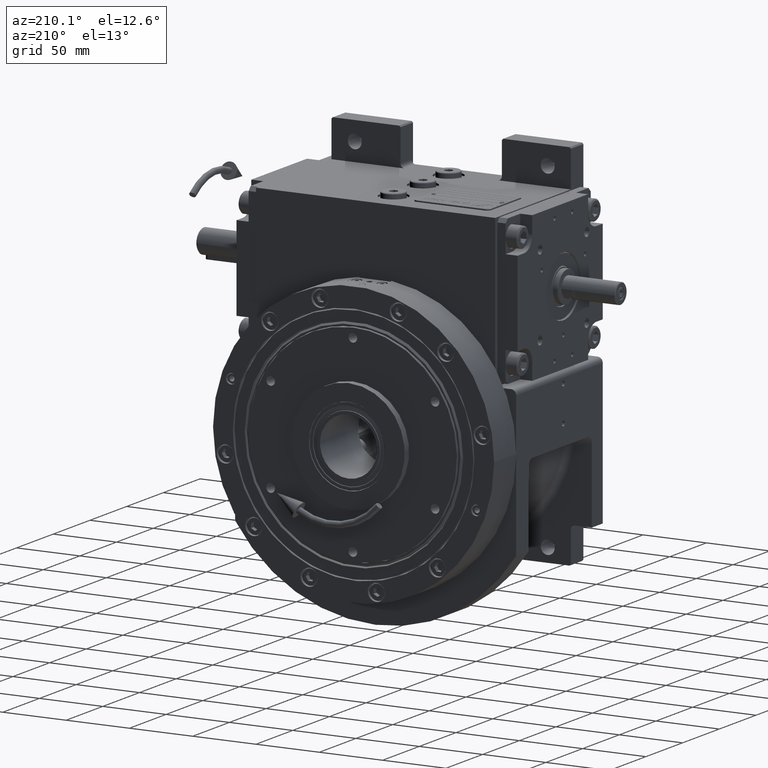
[diagram: clean part render]
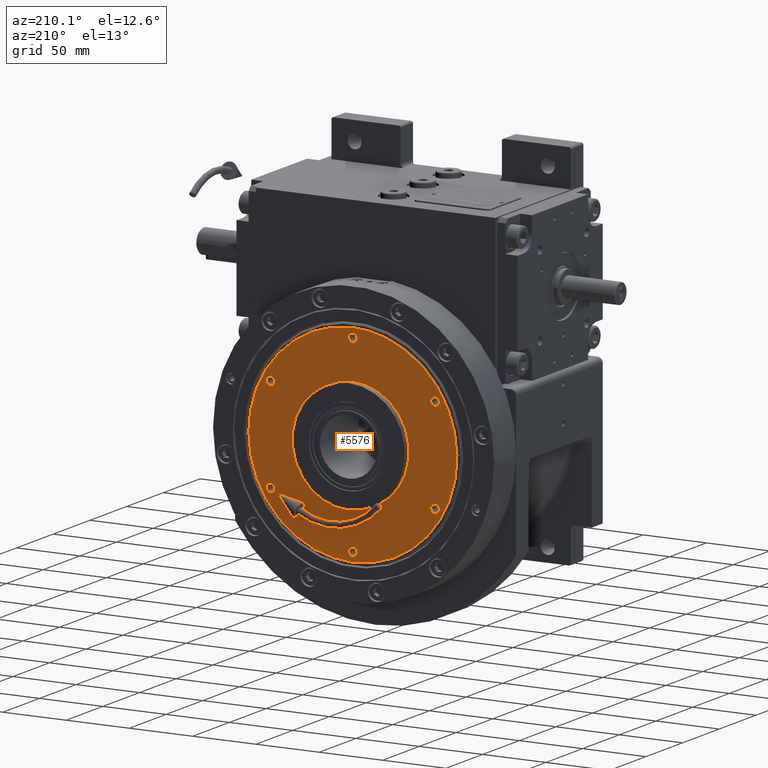
[diagram: same view with one face highlighted and labeled with its STEP entity id]
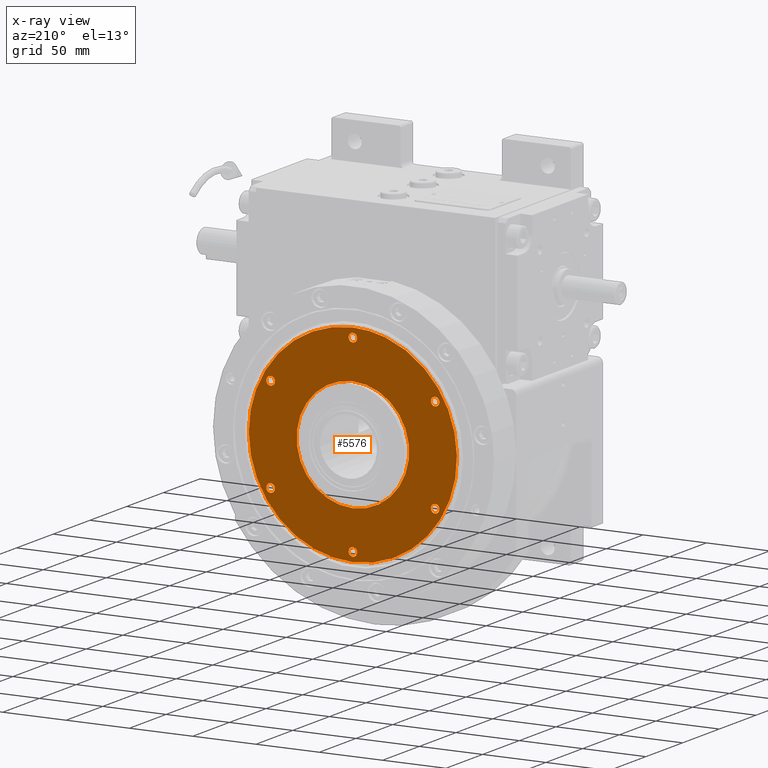
[diagram: x-ray of the same camera — body ghosted, the highlighted face saturated]
A machine part, auxiliary view. The second image highlights one B-rep face of the part: STEP entity #5576.
The next image is the same camera in x-ray: the body ghosted, the highlighted face saturated — about 0% of this face is hidden behind the body in this view.
In plain terms, the highlighted planar face has unit normal (0, -1, -0).
Its self-contained STEP definition (entity closure, byte-faithful):
#351 = AXIS2_PLACEMENT_3D ( 'NONE', #15324, #16023, #48330 ) ;
#395 = EDGE_CURVE ( 'NONE', #67868, #56817, #13208, .T. ) ;
#752 = DIRECTION ( 'NONE',  ( -1.836909530733564901E-16, -1.000000000000000000, -4.632011979606505031E-33 ) ) ;
#782 = CARTESIAN_POINT ( 'NONE',  ( 37.49999999999973710, 110.5000000000000000, 64.95190528383290030 ) ) ;
#865 = CARTESIAN_POINT ( 'NONE',  ( 78.32095192439939524, 110.4999999999999858, 25.16328900372727162 ) ) ;
#874 = CARTESIAN_POINT ( 'NONE',  ( 82.18603400874251008, 110.5000015448018047, 1.581323405575299952E-07 ) ) ;
#1109 = ORIENTED_EDGE ( 'NONE', *, *, #52086, .F. ) ;
#1265 = EDGE_LOOP ( 'NONE', ( #1109, #42012 ) ) ;
#1384 = CARTESIAN_POINT ( 'NONE',  ( -81.03742544091511490, 110.5000000000000284, -13.71909706410294660 ) ) ;
#1468 = FACE_BOUND ( 'NONE', #60481, .T. ) ;
#1510 = DIRECTION ( 'NONE',  ( -1.000000000000000000, 4.081702296416015997E-15, 0.000000000000000000 ) ) ;
#2383 = EDGE_LOOP ( 'NONE', ( #39546, #3454, #57686 ) ) ;
#2509 = CARTESIAN_POINT ( 'NONE',  ( 61.93063791654595462, 110.5000000000000000, -54.29769947772633287 ) ) ;
#2711 = DIRECTION ( 'NONE',  ( 1.000000000000000000, 0.000000000000000000, 0.000000000000000000 ) ) ;
#2758 = CARTESIAN_POINT ( 'NONE',  ( -77.86803878220746356, 110.5000000000000284, -26.42874468702228441 ) ) ;
#3024 = CIRCLE ( 'NONE', #65813, 44.45000000000000284 ) ;
#3454 = ORIENTED_EDGE ( 'NONE', *, *, #37131, .T. ) ;
#3954 = EDGE_CURVE ( 'NONE', #23517, #60340, #25496, .T. ) ;
#4106 = CARTESIAN_POINT ( 'NONE',  ( -1.048367022895735268E-10, 110.5000000000000142, -82.18603692326404087 ) ) ;
#5501 = AXIS2_PLACEMENT_3D ( 'NONE', #20584, #42011, #32522 ) ;
#5576 = ADVANCED_FACE ( 'NONE', ( #65064, #1468, #28176, #43972, #10972, #38683, #6381, #21829 ), #32403, .F. ) ;
#6003 = EDGE_CURVE ( 'NONE', #44333, #53288, #19692, .T. ) ;
#6139 = CIRCLE ( 'NONE', #44288, 3.400000000000000355 ) ;
#6381 = FACE_BOUND ( 'NONE', #63634, .T. ) ;
#6408 = B_SPLINE_CURVE_WITH_KNOTS ( 'NONE', 3,
 ( #14258, #9355, #36725, #30771, #30078, #51837, #10047, #25177, #31470, #57134, #35337, #52184, #52886, #24823, #26210, #47603, #9011, #46229, #67670, #18239, #19525, #30427, #48307, #38102, #10387, #15997, #42344, #20903, #27921, #21600, #53924, #59538, #58511, #21930, #43027, #54263, #11417, #64458, #58844, #865, #59875, #69031, #16326, #26894, #69393, #11757, #31807, #54586 ),
 .UNSPECIFIED., .F., .F.,
 ( 4, 1, 1, 1, 2, 2, 2, 2, 2, 2, 2, 2, 2, 2, 2, 2, 2, 2, 2, 2, 2, 1, 1, 1, 2, 2, 4 ),
 ( 0.000000000000000000, 0.03124999999999995837, 0.04687499999999995143, 0.05468749999999994449, 0.05859374999999993755, 0.06249999999999991673, 0.09374999999999993061, 0.1249999999999999445, 0.1874999999999999722, 0.2500000000000000000, 0.3125000000000000000, 0.3750000000000000555, 0.4375000000000000555, 0.5000000000000001110, 0.5625000000000001110, 0.6250000000000001110, 0.6875000000000002220, 0.7500000000000002220, 0.8125000000000001110, 0.8437500000000001110, 0.8750000000000000000, 0.9062500000000000000, 0.9218750000000000000, 0.9296875000000000000, 0.9335937500000000000, 0.9375000000000000000, 1.000000000000000000 ),
 .UNSPECIFIED. ) ;
#6448 = CARTESIAN_POINT ( 'NONE',  ( 2.842170943040403268E-14, 110.5000000000000000, -7.105427357600998703E-15 ) ) ;
#6814 = CARTESIAN_POINT ( 'NONE',  ( 34.09999999999973141, 110.5000000000000000, 64.95190528383290030 ) ) ;
#7335 = CARTESIAN_POINT ( 'NONE',  ( -1.048367022895735268E-10, 110.5000000000000142, -82.18603692326404087 ) ) ;
#7691 = CARTESIAN_POINT ( 'NONE',  ( -65.33708734634375048, 110.5000000000000142, -50.14696052069778887 ) ) ;
#8040 = CARTESIAN_POINT ( 'NONE',  ( -82.18412582237159825, 110.5000000000000426, -2.706922455996795041 ) ) ;
#8375 = VERTEX_POINT ( 'NONE', #874 ) ;
#8631 = ORIENTED_EDGE ( 'NONE', *, *, #13404, .F. ) ;
#8794 = CIRCLE ( 'NONE', #48038, 3.400000000000000355 ) ;
#8815 = EDGE_CURVE ( 'NONE', #15505, #37040, #14692, .T. ) ;
#9011 = CARTESIAN_POINT ( 'NONE',  ( -54.29909472632881773, 110.5000000000000000, 61.92944677904171868 ) ) ;
#9355 = CARTESIAN_POINT ( 'NONE',  ( -82.18410185386885303, 110.4999999999999858, 2.706720040397336824 ) ) ;
#9891 = EDGE_CURVE ( 'NONE', #31220, #59147, #13970, .T. ) ;
#10047 = CARTESIAN_POINT ( 'NONE',  ( -80.73618378714648713, 110.5000000000000142, 15.37033942092474881 ) ) ;
#10279 = DIRECTION ( 'NONE',  ( 1.000000000000000000, 0.000000000000000000, 1.436759208338440266E-15 ) ) ;
#10313 = EDGE_CURVE ( 'NONE', #51118, #48068, #6139, .T. ) ;
#10387 = CARTESIAN_POINT ( 'NONE',  ( 5.396190313849494657, 110.5000000000000000, 82.18606838660620895 ) ) ;
#10888 = EDGE_LOOP ( 'NONE', ( #47953, #67064 ) ) ;
#10972 = FACE_BOUND ( 'NONE', #53400, .T. ) ;
#11366 = ORIENTED_EDGE ( 'NONE', *, *, #59996, .F. ) ;
#11417 = CARTESIAN_POINT ( 'NONE',  ( 73.74790136345738745, 110.5000000000000000, 36.37523474268279244 ) ) ;
#11662 = CARTESIAN_POINT ( 'NONE',  ( 82.18603400874251008, 110.5000015448018047, 1.581323405575299952E-07 ) ) ;
#11690 = DIRECTION ( 'NONE',  ( 4.179663151529975200E-15, 1.000000000000000000, 2.089831575764979711E-15 ) ) ;
#11757 = CARTESIAN_POINT ( 'NONE',  ( 81.65593245021590008, 110.4999999999999716, 10.75709170780790025 ) ) ;
#12146 = EDGE_CURVE ( 'NONE', #61810, #24700, #3024, .T. ) ;
#12282 = CARTESIAN_POINT ( 'NONE',  ( -5.396965920549728679, 110.4999999999999858, -82.18606886526323763 ) ) ;
#12504 = CARTESIAN_POINT ( 'NONE',  ( -82.18603400874100373, 110.5000015448012078, -1.581323299043350224E-07 ) ) ;
#12715 = CARTESIAN_POINT ( 'NONE',  ( 65.33763228115991240, 110.4999999999999858, -50.14630245138530995 ) ) ;
#12948 = CARTESIAN_POINT ( 'NONE',  ( -81.41054315470101699, 110.5000000000000142, -11.40073033654709000 ) ) ;
#13043 = CARTESIAN_POINT ( 'NONE',  ( 5.396965314102869726, 110.4999999999999858, -82.18599046470633596 ) ) ;
#13208 = CIRCLE ( 'NONE', #41309, 3.400000000000000355 ) ;
#13404 = EDGE_CURVE ( 'NONE', #60340, #23517, #64722, .T. ) ;
#13603 = DIRECTION ( 'NONE',  ( 0.000000000000000000, 1.000000000000000000, -2.089831575765000222E-15 ) ) ;
#13655 = CARTESIAN_POINT ( 'NONE',  ( -10.74076764840350862, 110.4999999999999858, -81.65964476131456706 ) ) ;
#13657 = CARTESIAN_POINT ( 'NONE',  ( 40.89999999999973568, 110.5000000000000000, 64.95190528383344031 ) ) ;
#13970 = CIRCLE ( 'NONE', #15079, 3.400000000000000355 ) ;
#14258 = CARTESIAN_POINT ( 'NONE',  ( -82.18603400874100373, 110.5000015448012078, -1.581323299043350224E-07 ) ) ;
#14342 = CARTESIAN_POINT ( 'NONE',  ( 78.39999999999999147, 110.5000000000000000, -7.572756541330611374E-27 ) ) ;
#14504 = DIRECTION ( 'NONE',  ( 1.000000000000000000, -4.081702296416015997E-15, 0.000000000000000000 ) ) ;
#14692 = CIRCLE ( 'NONE', #15802, 3.400000000000000355 ) ;
#14845 = AXIS2_PLACEMENT_3D ( 'NONE', #60515, #65095, #37673 ) ;
#15079 = AXIS2_PLACEMENT_3D ( 'NONE', #63038, #13603, #2711 ) ;
#15324 = CARTESIAN_POINT ( 'NONE',  ( 37.49999999999973710, 110.5000000000000000, 64.95190528383290030 ) ) ;
#15505 = VERTEX_POINT ( 'NONE', #13657 ) ;
#15544 = DIRECTION ( 'NONE',  ( 4.179663151529975200E-15, 1.000000000000000000, 2.089831575764989967E-15 ) ) ;
#15750 = CARTESIAN_POINT ( 'NONE',  ( 44.44999999999973994, 110.5000000000000000, 5.443555022212860307E-15 ) ) ;
#15802 = AXIS2_PLACEMENT_3D ( 'NONE', #782, #33822, #49607 ) ;
#15997 = CARTESIAN_POINT ( 'NONE',  ( 10.74154536275718641, 110.5000000000000000, 81.65949047945815664 ) ) ;
#16023 = DIRECTION ( 'NONE',  ( 0.000000000000000000, 1.000000000000000000, -2.089831575764989967E-15 ) ) ;
#16211 = DIRECTION ( 'NONE',  ( 0.000000000000000000, 1.000000000000000000, 1.540743955586159449E-33 ) ) ;
#16301 = CARTESIAN_POINT ( 'NONE',  ( -40.90000000000026148, 110.5000000000000000, 64.95190528383290030 ) ) ;
#16326 = CARTESIAN_POINT ( 'NONE',  ( 80.33384769217845189, 110.4999999999999858, 17.35112966435321979 ) ) ;
#16928 = CARTESIAN_POINT ( 'NONE',  ( 2.030702568688729503E-14, 110.5000000000000000, 0.000000000000000000 ) ) ;
#17280 = CARTESIAN_POINT ( 'NONE',  ( 10.74078281828397508, 110.4999999999999716, -81.65971843768956262 ) ) ;
#18015 = CARTESIAN_POINT ( 'NONE',  ( -37.50000000000000000, 110.5000000000000000, -64.95190528383237449 ) ) ;
#18230 = CARTESIAN_POINT ( 'NONE',  ( -71.33364469616624604, 110.5000000000000142, -41.17277949763079903 ) ) ;
#18239 = CARTESIAN_POINT ( 'NONE',  ( -36.43677092628834657, 110.5000000000000000, 73.86494086435298811 ) ) ;
#18564 = CARTESIAN_POINT ( 'NONE',  ( -81.98533930688320481, 110.5000000000000000, -6.740832071539393233 ) ) ;
#19466 = EDGE_LOOP ( 'NONE', ( #54840, #29063 ) ) ;
#19525 = CARTESIAN_POINT ( 'NONE',  ( -26.46591210633614466, 110.5000000000000426, 77.99484015378844504 ) ) ;
#19692 = B_SPLINE_CURVE_WITH_KNOTS ( 'NONE', 3,
 ( #7335, #12282, #13655, #61425, #23509, #39656, #29458, #34733, #44221, #34377, #7691, #18230, #55454, #45267, #2758, #44569, #56161, #24180, #61083, #66689, #1384, #12948, #18564, #8040, #61782 ),
 .UNSPECIFIED., .F., .F.,
 ( 4, 2, 2, 2, 2, 2, 2, 2, 2, 2, 1, 1, 1, 4 ),
 ( 0.4999999719176850821, 0.5624999754279744746, 0.6249999789382639781, 0.6874999824485534816, 0.7499999859588428741, 0.8124999894691323776, 0.8749999929794217701, 0.9062499947345665774, 0.9374999964897112736, 0.9414062467091042219, 0.9453124969284972812, 0.9531249973672833997, 0.9687499982448555258, 1.000000000000000000 ),
 .UNSPECIFIED. ) ;
#20584 = CARTESIAN_POINT ( 'NONE',  ( -75.00000000000000000, 110.5000000000000000, 7.993605777293462518E-15 ) ) ;
#20903 = CARTESIAN_POINT ( 'NONE',  ( 26.46597584794664115, 110.5000000000000000, 77.99473097346013617 ) ) ;
#21600 = CARTESIAN_POINT ( 'NONE',  ( 41.17346744512528289, 110.4999999999999858, 71.33314274904846286 ) ) ;
#21782 = ORIENTED_EDGE ( 'NONE', *, *, #32164, .F. ) ;
#21829 = FACE_BOUND ( 'NONE', #19466, .T. ) ;
#21930 = CARTESIAN_POINT ( 'NONE',  ( 65.33793898011035139, 110.4999999999999716, 50.14568632257584824 ) ) ;
#22236 = DIRECTION ( 'NONE',  ( -3.197042680585385368E-16, -1.000000000000000000, -2.395852276087259110E-17 ) ) ;
#23194 = DIRECTION ( 'NONE',  ( 6.394085361170760874E-16, 1.000000000000000000, -2.395852276087253871E-17 ) ) ;
#23241 = CARTESIAN_POINT ( 'NONE',  ( 41.17286106389226319, 110.4999999999999858, -71.33364164011456410 ) ) ;
#23509 = CARTESIAN_POINT ( 'NONE',  ( -26.46516568415016835, 110.5000000000000284, -77.99506614383170700 ) ) ;
#23517 = VERTEX_POINT ( 'NONE', #64614 ) ;
#23929 = CARTESIAN_POINT ( 'NONE',  ( 71.21656534630055546, 110.4999999999999858, -41.11101387479465075 ) ) ;
#24180 = CARTESIAN_POINT ( 'NONE',  ( -80.67302273752034125, 110.5000000000000284, -15.69862675829507204 ) ) ;
#24700 = VERTEX_POINT ( 'NONE', #34061 ) ;
#24823 = CARTESIAN_POINT ( 'NONE',  ( -71.33312151958747904, 110.5000000000000142, 41.17344376063476830 ) ) ;
#24986 = CARTESIAN_POINT ( 'NONE',  ( -75.00000000000000000, 110.5000000000000000, 1.043609643146883373E-14 ) ) ;
#25084 = CARTESIAN_POINT ( 'NONE',  ( 34.10000000000000142, 110.5000000000000000, -64.95190528383290030 ) ) ;
#25177 = CARTESIAN_POINT ( 'NONE',  ( -80.67297687466572143, 110.5000000000000284, 15.69867770626846770 ) ) ;
#25496 = CIRCLE ( 'NONE', #64730, 3.400000000000000355 ) ;
#26210 = CARTESIAN_POINT ( 'NONE',  ( -65.33761603904908100, 110.5000000000000426, 50.14632643991264871 ) ) ;
#26894 = CARTESIAN_POINT ( 'NONE',  ( 80.47346500646517597, 110.4999999999999716, 16.69135747300155614 ) ) ;
#27921 = CARTESIAN_POINT ( 'NONE',  ( 36.43673274471090195, 110.5000000000000142, 73.86503631034787531 ) ) ;
#28045 = CIRCLE ( 'NONE', #61686, 44.45000000000000284 ) ;
#28176 = FACE_BOUND ( 'NONE', #10888, .T. ) ;
#28186 = CARTESIAN_POINT ( 'NONE',  ( 80.54158547785669953, 110.4999999999999858, -16.35931090249731312 ) ) ;
#29063 = ORIENTED_EDGE ( 'NONE', *, *, #48369, .T. ) ;
#29458 = CARTESIAN_POINT ( 'NONE',  ( -41.17304319471159602, 110.5000000000000426, -71.33342587732616380 ) ) ;
#30078 = CARTESIAN_POINT ( 'NONE',  ( -81.03738559922308582, 110.5000000000000284, 13.71894467123656725 ) ) ;
#30427 = CARTESIAN_POINT ( 'NONE',  ( -21.32594694526337165, 110.5000000000000000, 79.55394827524149548 ) ) ;
#30771 = CARTESIAN_POINT ( 'NONE',  ( -81.41049721478043466, 110.4999999999999858, 11.40046640563004487 ) ) ;
#31220 = VERTEX_POINT ( 'NONE', #54592 ) ;
#31470 = CARTESIAN_POINT ( 'NONE',  ( -80.08037051196102141, 110.5000000000000142, 18.67829002333699506 ) ) ;
#31684 = B_SPLINE_CURVE_WITH_KNOTS ( 'NONE', 3,
 ( #11662, #59782, #66782, #28186, #49244, #34133, #39404, #60832, #43979, #49925, #33802, #55546, #23929, #50620, #12715, #2509, #44313, #54491, #23241, #66446, #45350, #38350, #17280, #13043, #60114 ),
 .UNSPECIFIED., .F., .F.,
 ( 4, 2, 2, 1, 1, 1, 2, 2, 2, 2, 2, 2, 2, 4 ),
 ( 0.000000000000000000, 0.06249999648971088506, 0.06640624627031782579, 0.07031249605092476651, 0.07812499561213863408, 0.09374999473456628596, 0.1249999929794215758, 0.1562499912242768518, 0.1874999894691321833, 0.2499999859588427631, 0.3124999824485532596, 0.3749999789382638671, 0.4374999754279744746, 0.4999999719176850821 ),
 .UNSPECIFIED. ) ;
#31807 = CARTESIAN_POINT ( 'NONE',  ( 82.18222187922351907, 110.4999999999999858, 5.413844607824314537 ) ) ;
#32164 = EDGE_CURVE ( 'NONE', #42274, #41018, #66077, .T. ) ;
#32403 = PLANE ( 'NONE',  #66918 ) ;
#32457 = DIRECTION ( 'NONE',  ( 1.000000000000000000, -3.122111992759157471E-16, 2.823168139440055505E-16 ) ) ;
#32522 = DIRECTION ( 'NONE',  ( 1.000000000000000000, 0.000000000000000000, -2.351060522735629490E-15 ) ) ;
#33802 = CARTESIAN_POINT ( 'NONE',  ( 74.89780891093313642, 110.5000000000000284, -33.94318345663835856 ) ) ;
#33822 = DIRECTION ( 'NONE',  ( 9.367723249499515189E-31, 1.000000000000000000, 2.089831575764994700E-15 ) ) ;
#34061 = CARTESIAN_POINT ( 'NONE',  ( -44.45000000000026574, 110.5000000000000000, -7.258073362939949116E-15 ) ) ;
#34133 = CARTESIAN_POINT ( 'NONE',  ( 80.33387830201940005, 110.4999999999999716, -17.35095847086826737 ) ) ;
#34377 = CARTESIAN_POINT ( 'NONE',  ( -61.93037135062296272, 110.5000000000000142, -54.29808050887305626 ) ) ;
#34433 = AXIS2_PLACEMENT_3D ( 'NONE', #48530, #58051, #10279 ) ;
#34733 = CARTESIAN_POINT ( 'NONE',  ( -50.14754556814370545, 110.5000000000000000, -65.33666926840521683 ) ) ;
#35038 = AXIS2_PLACEMENT_3D ( 'NONE', #35983, #57417, #41601 ) ;
#35337 = CARTESIAN_POINT ( 'NONE',  ( -77.86821339563776689, 110.5000000000000426, 26.42818210147167335 ) ) ;
#35474 = ORIENTED_EDGE ( 'NONE', *, *, #395, .F. ) ;
#35983 = CARTESIAN_POINT ( 'NONE',  ( -37.50000000000000000, 110.5000000000000000, -64.95190528383237449 ) ) ;
#36403 = CARTESIAN_POINT ( 'NONE',  ( -78.39999999999999147, 110.5000000000000000, 2.697109197274935919E-15 ) ) ;
#36725 = CARTESIAN_POINT ( 'NONE',  ( -81.98529366466023305, 110.4999999999999716, 6.740478288382624861 ) ) ;
#37040 = VERTEX_POINT ( 'NONE', #6814 ) ;
#37131 = EDGE_CURVE ( 'NONE', #8375, #44333, #31684, .T. ) ;
#37589 = ORIENTED_EDGE ( 'NONE', *, *, #58198, .F. ) ;
#37673 = DIRECTION ( 'NONE',  ( -1.000000000000000000, 4.081702296416015997E-15, 0.000000000000000000 ) ) ;
#38102 = CARTESIAN_POINT ( 'NONE',  ( -5.396175763947936410, 110.5000000000000000, 82.18599094346397749 ) ) ;
#38350 = CARTESIAN_POINT ( 'NONE',  ( 21.32671897775462355, 110.5000000000000142, -79.55379426815670740 ) ) ;
#38484 = CARTESIAN_POINT ( 'NONE',  ( -34.10000000000000142, 110.5000000000000000, -64.95190528383237449 ) ) ;
#38683 = FACE_BOUND ( 'NONE', #1265, .T. ) ;
#38698 = ORIENTED_EDGE ( 'NONE', *, *, #3954, .F. ) ;
#39054 = DIRECTION ( 'NONE',  ( 0.000000000000000000, 1.000000000000000000, -2.089831575764995489E-15 ) ) ;
#39404 = CARTESIAN_POINT ( 'NONE',  ( 80.11857142980544211, 110.5000000000000142, -18.33865731567764001 ) ) ;
#39546 = ORIENTED_EDGE ( 'NONE', *, *, #68829, .T. ) ;
#39656 = CARTESIAN_POINT ( 'NONE',  ( -36.43753282681043260, 110.4999999999999858, -73.86470531561997177 ) ) ;
#39706 = DIRECTION ( 'NONE',  ( 1.000000000000000000, -6.244223985518314942E-16, 2.023907469293703493E-16 ) ) ;
#40185 = EDGE_CURVE ( 'NONE', #48068, #51118, #64186, .T. ) ;
#40342 = EDGE_CURVE ( 'NONE', #59147, #31220, #41762, .T. ) ;
#41018 = VERTEX_POINT ( 'NONE', #36403 ) ;
#41309 = AXIS2_PLACEMENT_3D ( 'NONE', #60834, #39054, #52012 ) ;
#41601 = DIRECTION ( 'NONE',  ( 1.000000000000000000, 0.000000000000000000, 0.000000000000000000 ) ) ;
#41762 = CIRCLE ( 'NONE', #14845, 3.400000000000000355 ) ;
#42011 = DIRECTION ( 'NONE',  ( 0.000000000000000000, 1.000000000000000000, 1.540743955586159449E-33 ) ) ;
#42012 = ORIENTED_EDGE ( 'NONE', *, *, #8815, .F. ) ;
#42274 = VERTEX_POINT ( 'NONE', #66044 ) ;
#42344 = CARTESIAN_POINT ( 'NONE',  ( 21.32597268393185175, 110.4999999999999858, 79.55402177641883554 ) ) ;
#43027 = CARTESIAN_POINT ( 'NONE',  ( 69.83408181518969116, 110.4999999999999858, 43.41695845024568001 ) ) ;
#43260 = DIRECTION ( 'NONE',  ( -1.000000000000000000, 1.836909530733564901E-16, 0.000000000000000000 ) ) ;
#43423 = AXIS2_PLACEMENT_3D ( 'NONE', #67894, #15544, #14504 ) ;
#43972 = FACE_BOUND ( 'NONE', #59664, .T. ) ;
#43979 = CARTESIAN_POINT ( 'NONE',  ( 78.32115647600109298, 110.4999999999999716, -25.16263082416817198 ) ) ;
#44221 = CARTESIAN_POINT ( 'NONE',  ( -54.29850716401767841, 110.5000000000000000, -61.92993699073153380 ) ) ;
#44288 = AXIS2_PLACEMENT_3D ( 'NONE', #18015, #11690, #1510 ) ;
#44313 = CARTESIAN_POINT ( 'NONE',  ( 54.29822300750021924, 110.4999999999999432, -61.93031885547897986 ) ) ;
#44333 = VERTEX_POINT ( 'NONE', #4106 ) ;
#44569 = CARTESIAN_POINT ( 'NONE',  ( -79.42706700825716837, 110.5000000000000000, -21.28825086087052298 ) ) ;
#45267 = CARTESIAN_POINT ( 'NONE',  ( -76.96293238175633178, 110.5000000000000284, -28.95791760141081284 ) ) ;
#45350 = CARTESIAN_POINT ( 'NONE',  ( 26.46527515611211356, 110.5000000000000284, -77.99510436064866781 ) ) ;
#46076 = CARTESIAN_POINT ( 'NONE',  ( -40.89999999999999858, 110.5000000000000000, -64.95190528383290030 ) ) ;
#46229 = CARTESIAN_POINT ( 'NONE',  ( -50.14684274527402152, 110.5000000000000142, 65.33704237330343290 ) ) ;
#46523 = CARTESIAN_POINT ( 'NONE',  ( 40.89999999999999858, 110.5000000000000000, -64.95190528383237449 ) ) ;
#47603 = CARTESIAN_POINT ( 'NONE',  ( -61.92976105365575279, 110.5000000000000142, 54.29857669836266609 ) ) ;
#47953 = ORIENTED_EDGE ( 'NONE', *, *, #10313, .F. ) ;
#48038 = AXIS2_PLACEMENT_3D ( 'NONE', #24986, #57967, #68864 ) ;
#48068 = VERTEX_POINT ( 'NONE', #38484 ) ;
#48307 = CARTESIAN_POINT ( 'NONE',  ( -10.74154236511540184, 110.5000000000000000, 81.65956691445188653 ) ) ;
#48330 = DIRECTION ( 'NONE',  ( -1.000000000000000000, 0.000000000000000000, 0.000000000000000000 ) ) ;
#48369 = EDGE_CURVE ( 'NONE', #61810, #24700, #28045, .T. ) ;
#48530 = CARTESIAN_POINT ( 'NONE',  ( 75.00000000000000000, 110.5000000000000000, -4.884981308350821306E-15 ) ) ;
#49244 = CARTESIAN_POINT ( 'NONE',  ( 80.47346700800821395, 110.4999999999999858, -16.69126919466643955 ) ) ;
#49607 = DIRECTION ( 'NONE',  ( 1.000000000000000000, 0.000000000000000000, 0.000000000000000000 ) ) ;
#49925 = CARTESIAN_POINT ( 'NONE',  ( 76.96232867576274828, 110.5000000000000142, -28.95928036596271227 ) ) ;
#50620 = CARTESIAN_POINT ( 'NONE',  ( 69.83423930135026581, 110.4999999999999858, -43.41667302301342346 ) ) ;
#50723 = ORIENTED_EDGE ( 'NONE', *, *, #9891, .F. ) ;
#51118 = VERTEX_POINT ( 'NONE', #46076 ) ;
#51837 = CARTESIAN_POINT ( 'NONE',  ( -80.85911346599473859, 110.4999999999999858, 14.71011054370710980 ) ) ;
#52012 = DIRECTION ( 'NONE',  ( -1.000000000000000000, 0.000000000000000000, 0.000000000000000000 ) ) ;
#52086 = EDGE_CURVE ( 'NONE', #37040, #15505, #67675, .T. ) ;
#52184 = CARTESIAN_POINT ( 'NONE',  ( -76.96276536764067089, 110.5000000000000142, 28.95822631422415583 ) ) ;
#52886 = CARTESIAN_POINT ( 'NONE',  ( -73.86467355760834153, 110.5000000000000142, 36.43724814399683254 ) ) ;
#53288 = VERTEX_POINT ( 'NONE', #12504 ) ;
#53400 = EDGE_LOOP ( 'NONE', ( #62137, #50723 ) ) ;
#53924 = CARTESIAN_POINT ( 'NONE',  ( 50.14712887847355915, 110.4999999999999716, 65.33694734459872677 ) ) ;
#54263 = CARTESIAN_POINT ( 'NONE',  ( 71.21633143618713291, 110.5000000000000000, 41.11144999242241482 ) ) ;
#54463 = DIRECTION ( 'NONE',  ( -1.000000000000000000, 0.000000000000000000, -1.502066445081090976E-15 ) ) ;
#54491 = CARTESIAN_POINT ( 'NONE',  ( 50.14771722367689222, 110.4999999999999716, -65.33645767331709919 ) ) ;
#54586 = CARTESIAN_POINT ( 'NONE',  ( 82.18603400874251008, 110.5000015448018047, 1.581323405575299952E-07 ) ) ;
#54592 = CARTESIAN_POINT ( 'NONE',  ( -34.10000000000026432, 110.5000000000000000, 64.95190528383344031 ) ) ;
#54840 = ORIENTED_EDGE ( 'NONE', *, *, #12146, .F. ) ;
#55454 = CARTESIAN_POINT ( 'NONE',  ( -73.86436510405066258, 110.5000000000000000, -36.43783581387070569 ) ) ;
#55546 = CARTESIAN_POINT ( 'NONE',  ( 73.74813151264139321, 110.5000000000000000, -36.37479690083411299 ) ) ;
#56161 = CARTESIAN_POINT ( 'NONE',  ( -80.08026981023135704, 110.5000000000000142, -18.67866566709026444 ) ) ;
#56817 = VERTEX_POINT ( 'NONE', #46523 ) ;
#57134 = CARTESIAN_POINT ( 'NONE',  ( -79.42723460417914794, 110.5000000000000142, 21.28768615169941825 ) ) ;
#57417 = DIRECTION ( 'NONE',  ( 0.000000000000000000, 1.000000000000000000, -2.089831575764980500E-15 ) ) ;
#57686 = ORIENTED_EDGE ( 'NONE', *, *, #6003, .T. ) ;
#57967 = DIRECTION ( 'NONE',  ( 0.000000000000000000, 1.000000000000000000, 1.540743955586159449E-33 ) ) ;
#58051 = DIRECTION ( 'NONE',  ( 0.000000000000000000, 1.000000000000000000, 1.540743955586159449E-33 ) ) ;
#58198 = EDGE_CURVE ( 'NONE', #56817, #67868, #59110, .T. ) ;
#58511 = CARTESIAN_POINT ( 'NONE',  ( 61.93011393209871329, 110.4999999999999858, 54.29833759267260263 ) ) ;
#58844 = CARTESIAN_POINT ( 'NONE',  ( 76.96221393906922970, 110.4999999999999716, 28.95965176232081362 ) ) ;
#59110 = CIRCLE ( 'NONE', #43423, 3.400000000000000355 ) ;
#59147 = VERTEX_POINT ( 'NONE', #16301 ) ;
#59538 = CARTESIAN_POINT ( 'NONE',  ( 54.29876972623154785, 110.4999999999999858, 61.92967476324737675 ) ) ;
#59664 = EDGE_LOOP ( 'NONE', ( #11366, #21782 ) ) ;
#59751 = CARTESIAN_POINT ( 'NONE',  ( 75.00000000000000000, 110.5000000000000000, 5.107025913275571780E-15 ) ) ;
#59782 = CARTESIAN_POINT ( 'NONE',  ( 82.18217394222040184, 110.4999999999999716, -5.413439777049708468 ) ) ;
#59875 = CARTESIAN_POINT ( 'NONE',  ( 79.57457908632085264, 110.4999999999999858, 20.63093614355465988 ) ) ;
#59996 = EDGE_CURVE ( 'NONE', #41018, #42274, #8794, .T. ) ;
#60114 = CARTESIAN_POINT ( 'NONE',  ( -1.048367022895735268E-10, 110.5000000000000142, -82.18603692326404087 ) ) ;
#60340 = VERTEX_POINT ( 'NONE', #14342 ) ;
#60481 = EDGE_LOOP ( 'NONE', ( #35474, #37589 ) ) ;
#60515 = CARTESIAN_POINT ( 'NONE',  ( -37.50000000000026290, 110.5000000000000000, 64.95190528383344031 ) ) ;
#60832 = CARTESIAN_POINT ( 'NONE',  ( 79.57472203535758126, 110.4999999999999858, -20.63044246711258722 ) ) ;
#60834 = CARTESIAN_POINT ( 'NONE',  ( 37.50000000000000000, 110.5000000000000000, -64.95190528383290030 ) ) ;
#61083 = CARTESIAN_POINT ( 'NONE',  ( -80.73621674438206242, 110.5000000000000000, -15.37038518178290758 ) ) ;
#61130 = CARTESIAN_POINT ( 'NONE',  ( 1.776356839400252042E-14, 110.5000000000000000, -3.552713678800499352E-15 ) ) ;
#61425 = CARTESIAN_POINT ( 'NONE',  ( -21.32673791258707396, 110.5000000000000000, -79.55386997823406148 ) ) ;
#61686 = AXIS2_PLACEMENT_3D ( 'NONE', #6448, #22236, #32457 ) ;
#61782 = CARTESIAN_POINT ( 'NONE',  ( -82.18603400874100373, 110.5000015448012078, -1.581323299043350224E-07 ) ) ;
#61810 = VERTEX_POINT ( 'NONE', #15750 ) ;
#62137 = ORIENTED_EDGE ( 'NONE', *, *, #40342, .F. ) ;
#63038 = CARTESIAN_POINT ( 'NONE',  ( -37.50000000000026290, 110.5000000000000000, 64.95190528383344031 ) ) ;
#63634 = EDGE_LOOP ( 'NONE', ( #38698, #8631 ) ) ;
#64186 = CIRCLE ( 'NONE', #35038, 3.400000000000000355 ) ;
#64458 = CARTESIAN_POINT ( 'NONE',  ( 74.89794069821219580, 110.5000000000000142, 33.94279222128608353 ) ) ;
#64614 = CARTESIAN_POINT ( 'NONE',  ( 71.59999999999999432, 110.5000000000000000, -3.645078006008976194E-16 ) ) ;
#64722 = CIRCLE ( 'NONE', #34433, 3.400000000000000355 ) ;
#64730 = AXIS2_PLACEMENT_3D ( 'NONE', #59751, #16211, #54463 ) ;
#65064 = FACE_OUTER_BOUND ( 'NONE', #2383, .T. ) ;
#65095 = DIRECTION ( 'NONE',  ( 4.179663151529964945E-15, 1.000000000000000000, 2.089831575764994700E-15 ) ) ;
#65813 = AXIS2_PLACEMENT_3D ( 'NONE', #61130, #23194, #39706 ) ;
#66044 = CARTESIAN_POINT ( 'NONE',  ( -71.59999999999999432, 110.5000000000000000, 3.061616997868260769E-15 ) ) ;
#66077 = CIRCLE ( 'NONE', #5501, 3.400000000000000355 ) ;
#66446 = CARTESIAN_POINT ( 'NONE',  ( 36.43741795798403871, 110.5000000000000142, -73.86467248177763167 ) ) ;
#66689 = CARTESIAN_POINT ( 'NONE',  ( -80.85914935550086113, 110.5000000000000142, -14.71020086056657838 ) ) ;
#66782 = CARTESIAN_POINT ( 'NONE',  ( 81.65587465362948194, 110.4999999999999432, -10.75668806138983946 ) ) ;
#66918 = AXIS2_PLACEMENT_3D ( 'NONE', #16928, #752, #43260 ) ;
#67064 = ORIENTED_EDGE ( 'NONE', *, *, #40185, .F. ) ;
#67670 = CARTESIAN_POINT ( 'NONE',  ( -41.17372798125234112, 110.5000000000000142, 71.33306199257258129 ) ) ;
#67675 = CIRCLE ( 'NONE', #351, 3.400000000000000355 ) ;
#67868 = VERTEX_POINT ( 'NONE', #25084 ) ;
#67894 = CARTESIAN_POINT ( 'NONE',  ( 37.50000000000000000, 110.5000000000000000, -64.95190528383290030 ) ) ;
#68829 = EDGE_CURVE ( 'NONE', #53288, #8375, #6408, .T. ) ;
#68864 = DIRECTION ( 'NONE',  ( -1.000000000000000000, 0.000000000000000000, -3.069440126904848242E-15 ) ) ;
#69031 = CARTESIAN_POINT ( 'NONE',  ( 80.11850087870728032, 110.4999999999999574, 18.33894396968164386 ) ) ;
#69393 = CARTESIAN_POINT ( 'NONE',  ( 80.54161329299185468, 110.4999999999999716, 16.35928189945978062 ) ) ;